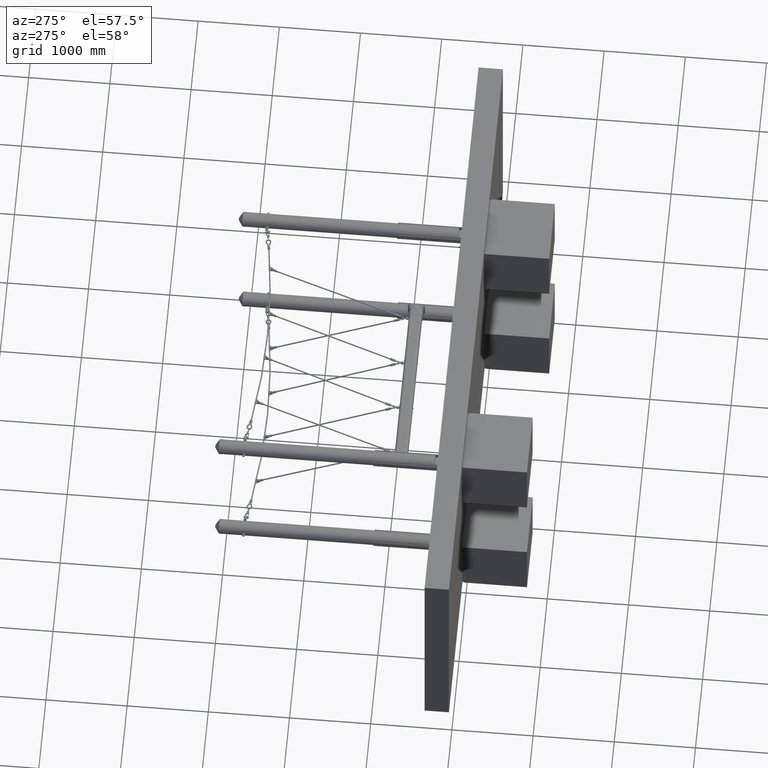
[diagram: clean part render]
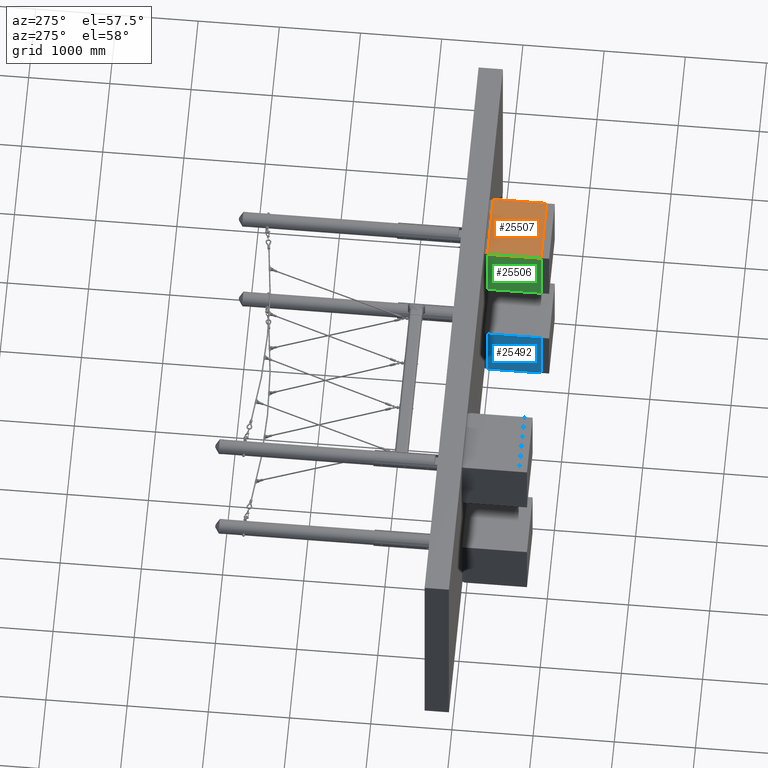
[diagram: same view with three faces highlighted in distinct colors, each labeled with its STEP entity id]
A machine part, auxiliary view with three faces highlighted in distinct colors.
Their STEP definitions:

[orange] entity #25507 — the highlighted planar face has unit normal (0, 0, -1).
#2387 = PLANE ( 'NONE',  #51547 ) ;
#2402 = FACE_OUTER_BOUND ( 'NONE', #21383, .T. ) ;
#2412 = CARTESIAN_POINT ( 'NONE',  ( 2719.999999999999500, 800.0000000000000000, 400.0000000000001100 ) ) ;
#2413 = DIRECTION ( 'NONE',  ( 0.0000000000000000000, 0.0000000000000000000, -1.000000000000000000 ) ) ;
#2414 = DIRECTION ( 'NONE',  ( -1.000000000000000000, 0.0000000000000000000, -0.0000000000000000000 ) ) ;
#3830 = VECTOR ( 'NONE', #5571, 1000.000000000000000 ) ;
#3835 = VECTOR ( 'NONE', #5587, 1000.000000000000000 ) ;
#3838 = VECTOR ( 'NONE', #5595, 1000.000000000000000 ) ;
#3839 = VECTOR ( 'NONE', #5598, 1000.000000000000000 ) ;
#5555 = LINE ( 'NONE', #5570, #3830 ) ;
#5570 = CARTESIAN_POINT ( 'NONE',  ( 3520.000000000000000, 800.0000000000000000, 400.0000000000001100 ) ) ;
#5571 = DIRECTION ( 'NONE',  ( -0.0000000000000000000, -1.000000000000000000, -0.0000000000000000000 ) ) ;
#5584 = LINE ( 'NONE', #5586, #3835 ) ;
#5586 = CARTESIAN_POINT ( 'NONE',  ( 2719.999999999999500, 800.0000000000000000, 400.0000000000001100 ) ) ;
#5587 = DIRECTION ( 'NONE',  ( -0.0000000000000000000, -1.000000000000000000, -0.0000000000000000000 ) ) ;
#5593 = LINE ( 'NONE', #5594, #3838 ) ;
#5594 = CARTESIAN_POINT ( 'NONE',  ( 2719.999999999999500, 658.5786437626901500, 400.0000000000001100 ) ) ;
#5595 = DIRECTION ( 'NONE',  ( -1.000000000000000000, -0.0000000000000000000, -0.0000000000000000000 ) ) ;
#5596 = LINE ( 'NONE', #5597, #3839 ) ;
#5597 = CARTESIAN_POINT ( 'NONE',  ( 2719.999999999999500, 0.0000000000000000000, 400.0000000000001100 ) ) ;
#5598 = DIRECTION ( 'NONE',  ( 1.000000000000000000, 0.0000000000000000000, 0.0000000000000000000 ) ) ;
#6364 = CARTESIAN_POINT ( 'NONE',  ( 2719.999999999999500, 0.0000000000000000000, 400.0000000000001100 ) ) ;
#6377 = CARTESIAN_POINT ( 'NONE',  ( 3520.000000000000000, 658.5786437626902600, 400.0000000000001100 ) ) ;
#6378 = CARTESIAN_POINT ( 'NONE',  ( 3520.000000000000000, 0.0000000000000000000, 400.0000000000001100 ) ) ;
#6381 = CARTESIAN_POINT ( 'NONE',  ( 2719.999999999999500, 658.5786437626902600, 400.0000000000001100 ) ) ;
#21383 = EDGE_LOOP ( 'NONE', ( #27255, #27256, #27257, #27258 ) ) ;
#25507 = ADVANCED_FACE ( 'NONE', ( #2402 ), #2387, .F. ) ;
#26015 = EDGE_CURVE ( 'NONE', #27771, #27772, #5555, .T. ) ;
#26020 = EDGE_CURVE ( 'NONE', #27775, #27758, #5584, .T. ) ;
#26023 = EDGE_CURVE ( 'NONE', #27771, #27775, #5593, .T. ) ;
#26024 = EDGE_CURVE ( 'NONE', #27758, #27772, #5596, .T. ) ;
#27255 = ORIENTED_EDGE ( 'NONE', *, *, #26015, .F. ) ;
#27256 = ORIENTED_EDGE ( 'NONE', *, *, #26023, .T. ) ;
#27257 = ORIENTED_EDGE ( 'NONE', *, *, #26020, .T. ) ;
#27258 = ORIENTED_EDGE ( 'NONE', *, *, #26024, .T. ) ;
#27758 = VERTEX_POINT ( 'NONE', #6364 ) ;
#27771 = VERTEX_POINT ( 'NONE', #6377 ) ;
#27772 = VERTEX_POINT ( 'NONE', #6378 ) ;
#27775 = VERTEX_POINT ( 'NONE', #6381 ) ;
#51547 = AXIS2_PLACEMENT_3D ( 'NONE', #2412, #2413, #2414 ) ;

[blue] entity #25492 — the highlighted planar face has unit normal (1, 0, 0).
#2249 = PLANE ( 'NONE',  #51497 ) ;
#2264 = FACE_OUTER_BOUND ( 'NONE', #21365, .T. ) ;
#2274 = CARTESIAN_POINT ( 'NONE',  ( 2720.000000000000500, 800.0000000000000000, -1419.999999999999800 ) ) ;
#2275 = DIRECTION ( 'NONE',  ( 1.000000000000000000, -0.0000000000000000000, 0.0000000000000000000 ) ) ;
#2276 = DIRECTION ( 'NONE',  ( 0.0000000000000000000, 0.0000000000000000000, -1.000000000000000000 ) ) ;
#3808 = VECTOR ( 'NONE', #5490, 1000.000000000000000 ) ;
#3809 = VECTOR ( 'NONE', #5501, 1000.000000000000000 ) ;
#3811 = VECTOR ( 'NONE', #5499, 1000.000000000000000 ) ;
#3813 = VECTOR ( 'NONE', #5504, 1000.000000000000000 ) ;
#5480 = LINE ( 'NONE', #5500, #3809 ) ;
#5487 = LINE ( 'NONE', #5489, #3808 ) ;
#5489 = CARTESIAN_POINT ( 'NONE',  ( 2720.000000000000500, 800.0000000000000000, -2219.999999999999500 ) ) ;
#5490 = DIRECTION ( 'NONE',  ( -0.0000000000000000000, -1.000000000000000000, -0.0000000000000000000 ) ) ;
#5496 = LINE ( 'NONE', #5498, #3811 ) ;
#5498 = CARTESIAN_POINT ( 'NONE',  ( 2720.000000000000500, 800.0000000000000000, -1419.999999999999800 ) ) ;
#5499 = DIRECTION ( 'NONE',  ( -0.0000000000000000000, -1.000000000000000000, -0.0000000000000000000 ) ) ;
#5500 = CARTESIAN_POINT ( 'NONE',  ( 2720.000000000000500, 658.5786437626904900, -2219.999999999999500 ) ) ;
#5501 = DIRECTION ( 'NONE',  ( -0.0000000000000000000, -0.0000000000000000000, -1.000000000000000000 ) ) ;
#5502 = LINE ( 'NONE', #5503, #3813 ) ;
#5503 = CARTESIAN_POINT ( 'NONE',  ( 2720.000000000000500, 0.0000000000000000000, -1419.999999999999800 ) ) ;
#5504 = DIRECTION ( 'NONE',  ( -0.0000000000000000000, -0.0000000000000000000, 1.000000000000000000 ) ) ;
#6348 = CARTESIAN_POINT ( 'NONE',  ( 2720.000000000000500, 0.0000000000000000000, -1419.999999999999800 ) ) ;
#6359 = CARTESIAN_POINT ( 'NONE',  ( 2720.000000000000500, 658.5786437626904900, -2219.999999999999500 ) ) ;
#6360 = CARTESIAN_POINT ( 'NONE',  ( 2720.000000000000500, 0.0000000000000000000, -2219.999999999999500 ) ) ;
#6365 = CARTESIAN_POINT ( 'NONE',  ( 2720.000000000000500, 658.5786437626906000, -1419.999999999999800 ) ) ;
#21365 = EDGE_LOOP ( 'NONE', ( #27195, #27196, #27197, #27198 ) ) ;
#25492 = ADVANCED_FACE ( 'NONE', ( #2264 ), #2249, .F. ) ;
#25989 = EDGE_CURVE ( 'NONE', #27753, #27754, #5487, .T. ) ;
#25992 = EDGE_CURVE ( 'NONE', #27759, #27742, #5496, .T. ) ;
#25993 = EDGE_CURVE ( 'NONE', #27759, #27753, #5480, .T. ) ;
#25994 = EDGE_CURVE ( 'NONE', #27754, #27742, #5502, .T. ) ;
#27195 = ORIENTED_EDGE ( 'NONE', *, *, #25992, .F. ) ;
#27196 = ORIENTED_EDGE ( 'NONE', *, *, #25993, .T. ) ;
#27197 = ORIENTED_EDGE ( 'NONE', *, *, #25989, .T. ) ;
#27198 = ORIENTED_EDGE ( 'NONE', *, *, #25994, .T. ) ;
#27742 = VERTEX_POINT ( 'NONE', #6348 ) ;
#27753 = VERTEX_POINT ( 'NONE', #6359 ) ;
#27754 = VERTEX_POINT ( 'NONE', #6360 ) ;
#27759 = VERTEX_POINT ( 'NONE', #6365 ) ;
#51497 = AXIS2_PLACEMENT_3D ( 'NONE', #2274, #2275, #2276 ) ;

[green] entity #25506 — the highlighted planar face has unit normal (1, 0, 0).
#2373 = PLANE ( 'NONE',  #51541 ) ;
#2388 = FACE_OUTER_BOUND ( 'NONE', #21379, .T. ) ;
#2398 = CARTESIAN_POINT ( 'NONE',  ( 2719.999999999999500, 800.0000000000000000, 400.0000000000001100 ) ) ;
#2399 = DIRECTION ( 'NONE',  ( 1.000000000000000000, -0.0000000000000000000, 0.0000000000000000000 ) ) ;
#2400 = DIRECTION ( 'NONE',  ( 0.0000000000000000000, 0.0000000000000000000, -1.000000000000000000 ) ) ;
#3832 = VECTOR ( 'NONE', #5578, 1000.000000000000000 ) ;
#3833 = VECTOR ( 'NONE', #5589, 1000.000000000000000 ) ;
#3835 = VECTOR ( 'NONE', #5587, 1000.000000000000000 ) ;
#3837 = VECTOR ( 'NONE', #5592, 1000.000000000000000 ) ;
#5568 = LINE ( 'NONE', #5588, #3833 ) ;
#5575 = LINE ( 'NONE', #5577, #3832 ) ;
#5577 = CARTESIAN_POINT ( 'NONE',  ( 2719.999999999999500, 800.0000000000000000, -399.9999999999998900 ) ) ;
#5578 = DIRECTION ( 'NONE',  ( -0.0000000000000000000, -1.000000000000000000, -0.0000000000000000000 ) ) ;
#5584 = LINE ( 'NONE', #5586, #3835 ) ;
#5586 = CARTESIAN_POINT ( 'NONE',  ( 2719.999999999999500, 800.0000000000000000, 400.0000000000001100 ) ) ;
#5587 = DIRECTION ( 'NONE',  ( -0.0000000000000000000, -1.000000000000000000, -0.0000000000000000000 ) ) ;
#5588 = CARTESIAN_POINT ( 'NONE',  ( 2719.999999999999500, 658.5786437626900400, -399.9999999999998900 ) ) ;
#5589 = DIRECTION ( 'NONE',  ( -0.0000000000000000000, -0.0000000000000000000, -1.000000000000000000 ) ) ;
#5590 = LINE ( 'NONE', #5591, #3837 ) ;
#5591 = CARTESIAN_POINT ( 'NONE',  ( 2719.999999999999500, 0.0000000000000000000, 400.0000000000001100 ) ) ;
#5592 = DIRECTION ( 'NONE',  ( -0.0000000000000000000, -0.0000000000000000000, 1.000000000000000000 ) ) ;
#6364 = CARTESIAN_POINT ( 'NONE',  ( 2719.999999999999500, 0.0000000000000000000, 400.0000000000001100 ) ) ;
#6375 = CARTESIAN_POINT ( 'NONE',  ( 2719.999999999999500, 658.5786437626900400, -399.9999999999998900 ) ) ;
#6376 = CARTESIAN_POINT ( 'NONE',  ( 2719.999999999999500, 0.0000000000000000000, -399.9999999999998900 ) ) ;
#6381 = CARTESIAN_POINT ( 'NONE',  ( 2719.999999999999500, 658.5786437626902600, 400.0000000000001100 ) ) ;
#21379 = EDGE_LOOP ( 'NONE', ( #27251, #27252, #27253, #27254 ) ) ;
#25506 = ADVANCED_FACE ( 'NONE', ( #2388 ), #2373, .F. ) ;
#26017 = EDGE_CURVE ( 'NONE', #27769, #27770, #5575, .T. ) ;
#26020 = EDGE_CURVE ( 'NONE', #27775, #27758, #5584, .T. ) ;
#26021 = EDGE_CURVE ( 'NONE', #27775, #27769, #5568, .T. ) ;
#26022 = EDGE_CURVE ( 'NONE', #27770, #27758, #5590, .T. ) ;
#27251 = ORIENTED_EDGE ( 'NONE', *, *, #26020, .F. ) ;
#27252 = ORIENTED_EDGE ( 'NONE', *, *, #26021, .T. ) ;
#27253 = ORIENTED_EDGE ( 'NONE', *, *, #26017, .T. ) ;
#27254 = ORIENTED_EDGE ( 'NONE', *, *, #26022, .T. ) ;
#27758 = VERTEX_POINT ( 'NONE', #6364 ) ;
#27769 = VERTEX_POINT ( 'NONE', #6375 ) ;
#27770 = VERTEX_POINT ( 'NONE', #6376 ) ;
#27775 = VERTEX_POINT ( 'NONE', #6381 ) ;
#51541 = AXIS2_PLACEMENT_3D ( 'NONE', #2398, #2399, #2400 ) ;